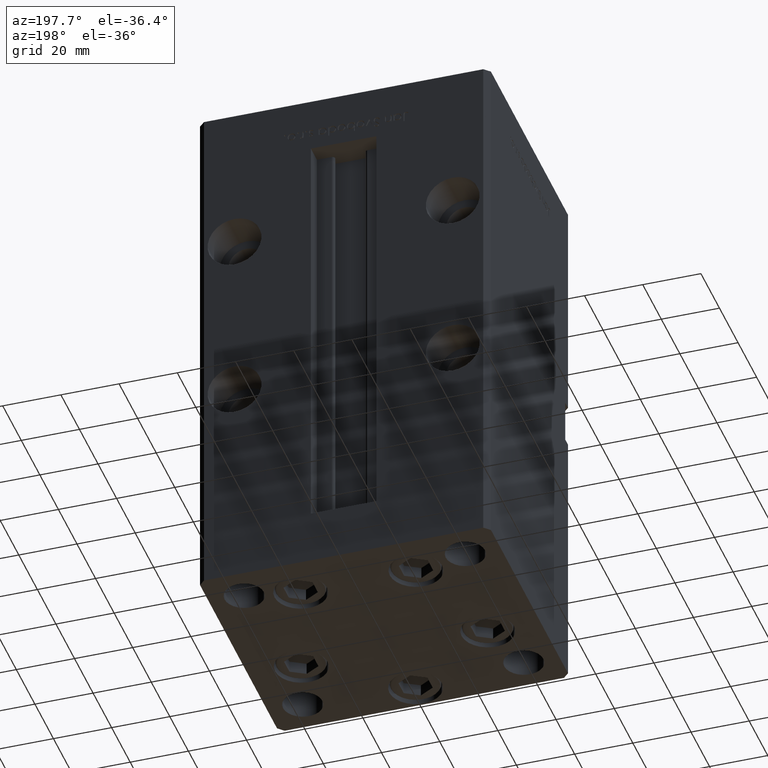
[diagram: clean part render]
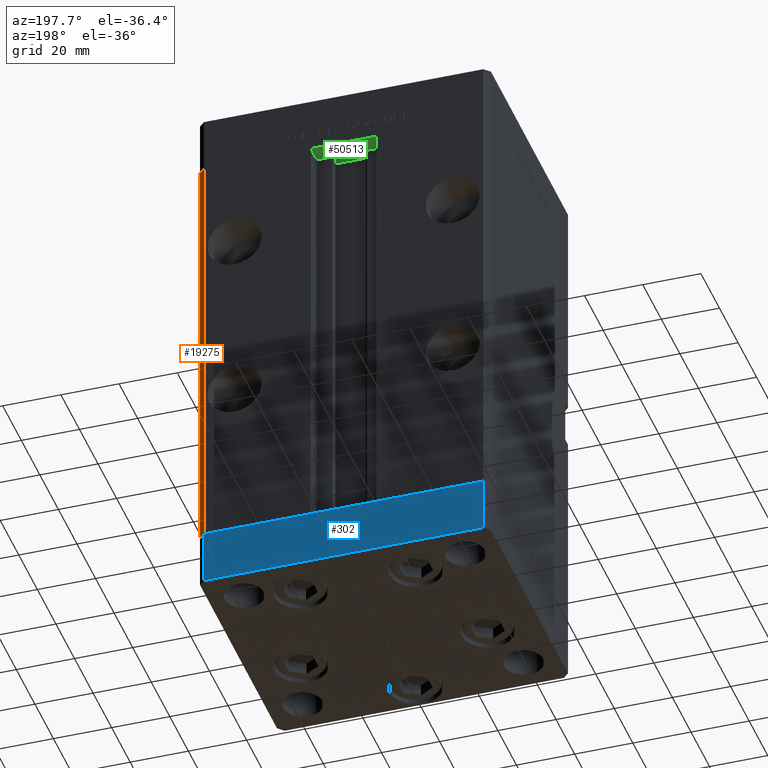
[diagram: same view with three faces highlighted in distinct colors, each labeled with its STEP entity id]
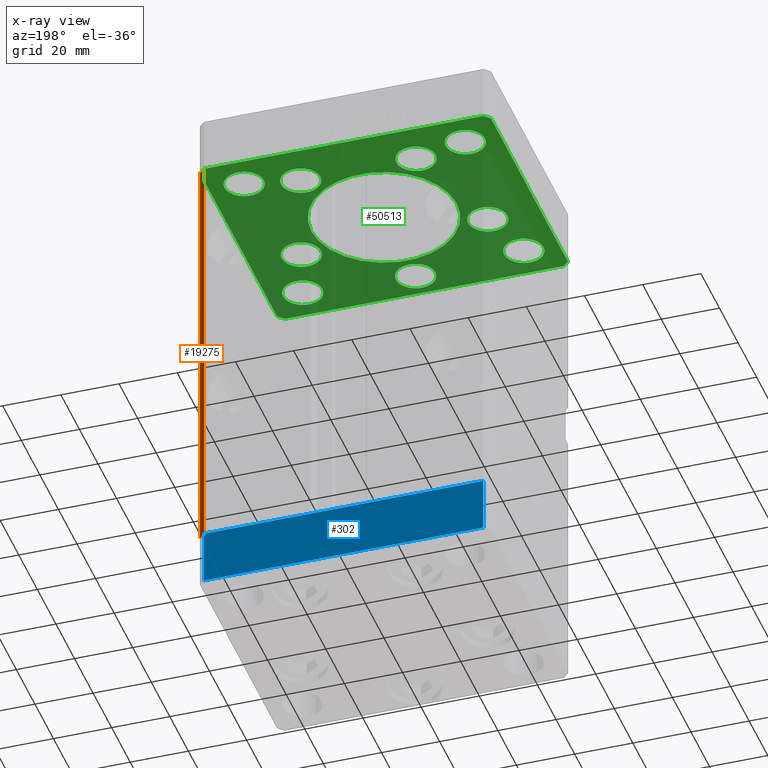
[diagram: x-ray of the same camera — body ghosted, the three highlighted faces saturated]
A machine part, auxiliary view with three faces highlighted in distinct colors.
The next image is the same camera in x-ray (body ghosted, the three faces saturated) — at least one of them is partly hidden behind the body in this view.
Their STEP definitions:

[orange] entity #19275 — the highlighted planar face has unit normal (0.7071, 0.7071, 0).
#2567 = EDGE_CURVE ( 'NONE', #20610, #41013, #51943, .T. ) ;
#3017 = DIRECTION ( 'NONE',  ( -0.000000000000000000, -0.000000000000000000, -1.000000000000000000 ) ) ;
#5166 = DIRECTION ( 'NONE',  ( 0.7071067811865487940, -0.7071067811865463515, 0.000000000000000000 ) ) ;
#5375 = CARTESIAN_POINT ( 'NONE',  ( 48.00000000000000711, 43.50000000000000000, 0.000000000000000000 ) ) ;
#6589 = EDGE_CURVE ( 'NONE', #41013, #16963, #34157, .T. ) ;
#7431 = ORIENTED_EDGE ( 'NONE', *, *, #2567, .F. ) ;
#11104 = VECTOR ( 'NONE', #5166, 1000.000000000000000 ) ;
#12851 = FACE_OUTER_BOUND ( 'NONE', #39712, .T. ) ;
#13911 = DIRECTION ( 'NONE',  ( 0.7071067811865463515, 0.7071067811865487940, -0.000000000000000000 ) ) ;
#16071 = CARTESIAN_POINT ( 'NONE',  ( 50.00000000000001421, 41.49999999999999289, 0.000000000000000000 ) ) ;
#16963 = VERTEX_POINT ( 'NONE', #16071 ) ;
#18594 = VERTEX_POINT ( 'NONE', #32690 ) ;
#19275 = ADVANCED_FACE ( 'NONE', ( #12851 ), #21212, .T. ) ;
#20610 = VERTEX_POINT ( 'NONE', #30955 ) ;
#21212 = PLANE ( 'NONE',  #46679 ) ;
#23267 = VECTOR ( 'NONE', #50532, 1000.000000000000000 ) ;
#27765 = CARTESIAN_POINT ( 'NONE',  ( 48.00000000000000711, 43.50000000000000000, 148.5000000000000000 ) ) ;
#30468 = CARTESIAN_POINT ( 'NONE',  ( 50.00000000000001421, 41.49999999999999289, 148.5000000000000000 ) ) ;
#30609 = CARTESIAN_POINT ( 'NONE',  ( 48.00000000000000711, 43.50000000000000000, 148.5000000000000000 ) ) ;
#30955 = CARTESIAN_POINT ( 'NONE',  ( 48.00000000000000711, 43.50000000000000000, 148.5000000000000000 ) ) ;
#32585 = VECTOR ( 'NONE', #3017, 1000.000000000000000 ) ;
#32690 = CARTESIAN_POINT ( 'NONE',  ( 50.00000000000001421, 41.49999999999999289, 148.5000000000000000 ) ) ;
#34157 = LINE ( 'NONE', #5375, #23267 ) ;
#36027 = EDGE_CURVE ( 'NONE', #20610, #18594, #38754, .T. ) ;
#36953 = EDGE_CURVE ( 'NONE', #18594, #16963, #44322, .T. ) ;
#38754 = LINE ( 'NONE', #42001, #11104 ) ;
#39038 = DIRECTION ( 'NONE',  ( -0.000000000000000000, -0.000000000000000000, -1.000000000000000000 ) ) ;
#39439 = DIRECTION ( 'NONE',  ( -0.7071067811865487940, 0.7071067811865463515, 0.000000000000000000 ) ) ;
#39712 = EDGE_LOOP ( 'NONE', ( #46822, #7431, #45962, #42011 ) ) ;
#41013 = VERTEX_POINT ( 'NONE', #48614 ) ;
#42001 = CARTESIAN_POINT ( 'NONE',  ( 48.00000000000000711, 43.50000000000000000, 148.5000000000000000 ) ) ;
#42011 = ORIENTED_EDGE ( 'NONE', *, *, #36953, .T. ) ;
#44322 = LINE ( 'NONE', #30468, #45475 ) ;
#45475 = VECTOR ( 'NONE', #39038, 1000.000000000000000 ) ;
#45962 = ORIENTED_EDGE ( 'NONE', *, *, #36027, .T. ) ;
#46679 = AXIS2_PLACEMENT_3D ( 'NONE', #30609, #13911, #39439 ) ;
#46822 = ORIENTED_EDGE ( 'NONE', *, *, #6589, .F. ) ;
#48614 = CARTESIAN_POINT ( 'NONE',  ( 48.00000000000000711, 43.50000000000000000, 0.000000000000000000 ) ) ;
#50532 = DIRECTION ( 'NONE',  ( 0.7071067811865487940, -0.7071067811865463515, 0.000000000000000000 ) ) ;
#51943 = LINE ( 'NONE', #27765, #32585 ) ;

[blue] entity #302 — the highlighted planar face has unit normal (-0, 1, 0).
#302 = ADVANCED_FACE ( 'NONE', ( #17180 ), #20966, .T. ) ;
#619 = CARTESIAN_POINT ( 'NONE',  ( 47.99999999999990763, 43.50000000000000000, -19.00000000000000000 ) ) ;
#693 = VERTEX_POINT ( 'NONE', #9841 ) ;
#2247 = VECTOR ( 'NONE', #7472, 1000.000000000000000 ) ;
#4806 = VERTEX_POINT ( 'NONE', #23884 ) ;
#7472 = DIRECTION ( 'NONE',  ( 0.000000000000000000, 0.000000000000000000, 1.000000000000000000 ) ) ;
#8490 = DIRECTION ( 'NONE',  ( -1.000000000000000000, -3.614007241618350743E-16, 0.000000000000000000 ) ) ;
#9841 = CARTESIAN_POINT ( 'NONE',  ( -48.00000000000000711, 43.49999999999996447, -19.00000000000000000 ) ) ;
#12361 = CARTESIAN_POINT ( 'NONE',  ( -48.00000000000000711, 43.49999999999996447, 0.000000000000000000 ) ) ;
#12608 = DIRECTION ( 'NONE',  ( -1.000000000000000000, -3.614007241618350743E-16, 0.000000000000000000 ) ) ;
#13762 = LINE ( 'NONE', #619, #48368 ) ;
#16827 = CARTESIAN_POINT ( 'NONE',  ( 47.99999999999990763, 43.50000000000000000, 0.000000000000000000 ) ) ;
#16920 = CARTESIAN_POINT ( 'NONE',  ( 47.99999999999990763, 43.50000000000000000, -19.00000000000000000 ) ) ;
#17180 = FACE_OUTER_BOUND ( 'NONE', #18619, .T. ) ;
#17780 = EDGE_CURVE ( 'NONE', #34168, #693, #13762, .T. ) ;
#18619 = EDGE_LOOP ( 'NONE', ( #51272, #35066, #49489, #18728 ) ) ;
#18728 = ORIENTED_EDGE ( 'NONE', *, *, #32778, .T. ) ;
#20966 = PLANE ( 'NONE',  #45502 ) ;
#22176 = VECTOR ( 'NONE', #27884, 1000.000000000000000 ) ;
#23309 = CARTESIAN_POINT ( 'NONE',  ( -48.00000000000000711, 43.49999999999996447, -19.00000000000000000 ) ) ;
#23884 = CARTESIAN_POINT ( 'NONE',  ( 47.99999999999990763, 43.50000000000000000, 0.000000000000000000 ) ) ;
#25173 = LINE ( 'NONE', #16827, #30782 ) ;
#25629 = DIRECTION ( 'NONE',  ( -1.000000000000000000, -3.614007241618350743E-16, 0.000000000000000000 ) ) ;
#26172 = EDGE_CURVE ( 'NONE', #34168, #4806, #51555, .T. ) ;
#27884 = DIRECTION ( 'NONE',  ( 0.000000000000000000, 0.000000000000000000, 1.000000000000000000 ) ) ;
#30782 = VECTOR ( 'NONE', #8490, 1000.000000000000000 ) ;
#31167 = CARTESIAN_POINT ( 'NONE',  ( 47.99999999999990763, 43.50000000000000000, -19.00000000000000000 ) ) ;
#32179 = LINE ( 'NONE', #23309, #22176 ) ;
#32778 = EDGE_CURVE ( 'NONE', #693, #49870, #32179, .T. ) ;
#32842 = EDGE_CURVE ( 'NONE', #4806, #49870, #25173, .T. ) ;
#34168 = VERTEX_POINT ( 'NONE', #45083 ) ;
#35066 = ORIENTED_EDGE ( 'NONE', *, *, #26172, .F. ) ;
#45083 = CARTESIAN_POINT ( 'NONE',  ( 47.99999999999990763, 43.50000000000000000, -19.00000000000000000 ) ) ;
#45502 = AXIS2_PLACEMENT_3D ( 'NONE', #16920, #52923, #12608 ) ;
#48368 = VECTOR ( 'NONE', #25629, 1000.000000000000000 ) ;
#49489 = ORIENTED_EDGE ( 'NONE', *, *, #17780, .T. ) ;
#49870 = VERTEX_POINT ( 'NONE', #12361 ) ;
#51272 = ORIENTED_EDGE ( 'NONE', *, *, #32842, .F. ) ;
#51555 = LINE ( 'NONE', #31167, #2247 ) ;
#52923 = DIRECTION ( 'NONE',  ( -3.614007241618350743E-16, 1.000000000000000000, 0.000000000000000000 ) ) ;

[green] entity #50513 — the highlighted planar face has unit normal (0, 0, 1).
#9 = CARTESIAN_POINT ( 'NONE',  ( 44.75000000000000711, -31.50000000000000711, -19.00000000000000000 ) ) ;
#276 = VERTEX_POINT ( 'NONE', #35492 ) ;
#337 = FACE_BOUND ( 'NONE', #22756, .T. ) ;
#645 = VERTEX_POINT ( 'NONE', #30295 ) ;
#1219 = ORIENTED_EDGE ( 'NONE', *, *, #7680, .T. ) ;
#1412 = CARTESIAN_POINT ( 'NONE',  ( 50.00000000000000000, 41.50000000000000711, -19.00000000000000000 ) ) ;
#1435 = CARTESIAN_POINT ( 'NONE',  ( 38.00000000000000000, 31.50000000000000000, -19.00000000000000000 ) ) ;
#2026 = AXIS2_PLACEMENT_3D ( 'NONE', #52338, #51286, #15518 ) ;
#2083 = DIRECTION ( 'NONE',  ( 1.000000000000000000, 0.000000000000000000, 0.000000000000000000 ) ) ;
#2460 = CARTESIAN_POINT ( 'NONE',  ( -26.57068048781375325, 27.62499999999998934, -19.00000000000000000 ) ) ;
#2581 = CARTESIAN_POINT ( 'NONE',  ( 0.000000000000000000, -34.00000000000000000, -19.00000000000000000 ) ) ;
#2671 = CARTESIAN_POINT ( 'NONE',  ( 38.80550741379015989, -11.33333333333332860, -19.00000000000000000 ) ) ;
#2763 = CIRCLE ( 'NONE', #27695, 6.749999999999999112 ) ;
#2844 = AXIS2_PLACEMENT_3D ( 'NONE', #30446, #38216, #5688 ) ;
#2958 = CARTESIAN_POINT ( 'NONE',  ( 0.000000000000000000, -34.00000000000000000, -19.00000000000000000 ) ) ;
#3185 = ORIENTED_EDGE ( 'NONE', *, *, #49909, .F. ) ;
#3190 = EDGE_CURVE ( 'NONE', #19876, #46682, #13733, .T. ) ;
#3293 = CARTESIAN_POINT ( 'NONE',  ( 50.00000000000000000, 41.50000000000000711, -19.00000000000000000 ) ) ;
#3545 = DIRECTION ( 'NONE',  ( 0.000000000000000000, -0.000000000000000000, -1.000000000000000000 ) ) ;
#3739 = DIRECTION ( 'NONE',  ( 0.000000000000000000, -0.000000000000000000, -1.000000000000000000 ) ) ;
#3753 = DIRECTION ( 'NONE',  ( 1.000000000000000000, 0.000000000000000000, 0.000000000000000000 ) ) ;
#3755 = DIRECTION ( 'NONE',  ( 0.000000000000000000, -0.000000000000000000, -1.000000000000000000 ) ) ;
#3808 = EDGE_LOOP ( 'NONE', ( #34101, #20000 ) ) ;
#4060 = ORIENTED_EDGE ( 'NONE', *, *, #15569, .F. ) ;
#4847 = ORIENTED_EDGE ( 'NONE', *, *, #19917, .F. ) ;
#5347 = CARTESIAN_POINT ( 'NONE',  ( 13.07068048781375147, 27.62499999999998934, -19.00000000000000000 ) ) ;
#5399 = CIRCLE ( 'NONE', #35460, 6.749999999999999112 ) ;
#5419 = FACE_BOUND ( 'NONE', #3808, .T. ) ;
#5688 = DIRECTION ( 'NONE',  ( 1.000000000000000000, 0.000000000000000000, 0.000000000000000000 ) ) ;
#5807 = CARTESIAN_POINT ( 'NONE',  ( -38.00000000000000000, 31.50000000000000000, -19.00000000000000000 ) ) ;
#5946 = FACE_BOUND ( 'NONE', #37921, .T. ) ;
#6738 = CIRCLE ( 'NONE', #11897, 6.749999999999999112 ) ;
#6759 = CARTESIAN_POINT ( 'NONE',  ( 32.05550741379015989, -11.33333333333332860, -19.00000000000000000 ) ) ;
#7021 = DIRECTION ( 'NONE',  ( 0.000000000000000000, -0.000000000000000000, -1.000000000000000000 ) ) ;
#7093 = LINE ( 'NONE', #31313, #28981 ) ;
#7136 = CARTESIAN_POINT ( 'NONE',  ( -48.00000000000000000, 43.49999999999997158, -19.00000000000000000 ) ) ;
#7335 = DIRECTION ( 'NONE',  ( 1.000000000000000000, 0.000000000000000000, 0.000000000000000000 ) ) ;
#7354 = CARTESIAN_POINT ( 'NONE',  ( -25.00000000000000000, 3.061616997868383043E-15, -19.00000000000000000 ) ) ;
#7680 = EDGE_CURVE ( 'NONE', #46682, #19876, #45627, .T. ) ;
#7743 = EDGE_CURVE ( 'NONE', #41165, #28846, #49061, .T. ) ;
#7769 = AXIS2_PLACEMENT_3D ( 'NONE', #2581, #35120, #14690 ) ;
#8017 = CARTESIAN_POINT ( 'NONE',  ( -31.25000000000000711, -31.50000000000000711, -19.00000000000000000 ) ) ;
#8488 = ORIENTED_EDGE ( 'NONE', *, *, #33697, .F. ) ;
#8690 = AXIS2_PLACEMENT_3D ( 'NONE', #25352, #13220, #16999 ) ;
#8976 = ORIENTED_EDGE ( 'NONE', *, *, #38957, .F. ) ;
#9336 = DIRECTION ( 'NONE',  ( 0.7071067811865474617, 0.7071067811865474617, 0.000000000000000000 ) ) ;
#9346 = ORIENTED_EDGE ( 'NONE', *, *, #7743, .T. ) ;
#9395 = EDGE_CURVE ( 'NONE', #50476, #23575, #48217, .T. ) ;
#9484 = EDGE_LOOP ( 'NONE', ( #1219, #32107 ) ) ;
#9507 = DIRECTION ( 'NONE',  ( 0.000000000000000000, 0.000000000000000000, 1.000000000000000000 ) ) ;
#9754 = CIRCLE ( 'NONE', #41500, 6.749999999999999112 ) ;
#9894 = EDGE_LOOP ( 'NONE', ( #15101, #45836 ) ) ;
#10031 = CARTESIAN_POINT ( 'NONE',  ( 31.25000000000000711, -31.50000000000000711, -19.00000000000000000 ) ) ;
#10286 = EDGE_LOOP ( 'NONE', ( #9346, #42416 ) ) ;
#10405 = CARTESIAN_POINT ( 'NONE',  ( -48.00000000000000711, -43.50000000000002842, -19.00000000000000000 ) ) ;
#10789 = EDGE_CURVE ( 'NONE', #40110, #14577, #49142, .T. ) ;
#10902 = DIRECTION ( 'NONE',  ( -0.7071067811865536790, -0.7071067811865414665, 0.000000000000000000 ) ) ;
#11342 = CARTESIAN_POINT ( 'NONE',  ( -50.00000000000000000, -41.50000000000004263, -19.00000000000000000 ) ) ;
#11618 = EDGE_CURVE ( 'NONE', #43804, #51718, #5399, .T. ) ;
#11777 = ORIENTED_EDGE ( 'NONE', *, *, #16631, .F. ) ;
#11897 = AXIS2_PLACEMENT_3D ( 'NONE', #5807, #38332, #33802 ) ;
#12170 = VECTOR ( 'NONE', #24782, 1000.000000000000000 ) ;
#13106 = LINE ( 'NONE', #50197, #30083 ) ;
#13220 = DIRECTION ( 'NONE',  ( 0.000000000000000000, -0.000000000000000000, -1.000000000000000000 ) ) ;
#13451 = ORIENTED_EDGE ( 'NONE', *, *, #9395, .F. ) ;
#13490 = FACE_BOUND ( 'NONE', #20736, .T. ) ;
#13733 = CIRCLE ( 'NONE', #30069, 6.749999999999999112 ) ;
#13834 = EDGE_CURVE ( 'NONE', #51718, #43804, #19232, .T. ) ;
#13846 = CARTESIAN_POINT ( 'NONE',  ( -31.25000000000000000, 31.50000000000000000, -19.00000000000000000 ) ) ;
#14011 = DIRECTION ( 'NONE',  ( 0.000000000000000000, -0.000000000000000000, -1.000000000000000000 ) ) ;
#14233 = EDGE_CURVE ( 'NONE', #28846, #41165, #52671, .T. ) ;
#14286 = FACE_OUTER_BOUND ( 'NONE', #39121, .T. ) ;
#14577 = VERTEX_POINT ( 'NONE', #45463 ) ;
#14652 = ORIENTED_EDGE ( 'NONE', *, *, #33793, .F. ) ;
#14690 = DIRECTION ( 'NONE',  ( 1.000000000000000000, 0.000000000000000000, 0.000000000000000000 ) ) ;
#14968 = EDGE_CURVE ( 'NONE', #21797, #19869, #43285, .T. ) ;
#15094 = DIRECTION ( 'NONE',  ( 1.000000000000000000, 0.000000000000000000, 0.000000000000000000 ) ) ;
#15101 = ORIENTED_EDGE ( 'NONE', *, *, #48548, .F. ) ;
#15518 = DIRECTION ( 'NONE',  ( 1.000000000000000000, 0.000000000000000000, 0.000000000000000000 ) ) ;
#15569 = EDGE_CURVE ( 'NONE', #49505, #22609, #48248, .T. ) ;
#15764 = AXIS2_PLACEMENT_3D ( 'NONE', #19369, #19626, #35491 ) ;
#16419 = ORIENTED_EDGE ( 'NONE', *, *, #10789, .F. ) ;
#16460 = CARTESIAN_POINT ( 'NONE',  ( -44.75000000000000000, 31.50000000000000000, -19.00000000000000000 ) ) ;
#16631 = EDGE_CURVE ( 'NONE', #37746, #32265, #48457, .T. ) ;
#16999 = DIRECTION ( 'NONE',  ( 1.000000000000000000, 0.000000000000000000, 0.000000000000000000 ) ) ;
#17537 = AXIS2_PLACEMENT_3D ( 'NONE', #2958, #3739, #43556 ) ;
#17979 = ORIENTED_EDGE ( 'NONE', *, *, #49834, .F. ) ;
#18194 = CIRCLE ( 'NONE', #28551, 6.749999999999999112 ) ;
#18389 = CARTESIAN_POINT ( 'NONE',  ( -44.75000000000000711, -31.50000000000000711, -19.00000000000000000 ) ) ;
#18688 = VERTEX_POINT ( 'NONE', #50928 ) ;
#18734 = VERTEX_POINT ( 'NONE', #32112 ) ;
#19232 = CIRCLE ( 'NONE', #15764, 6.749999999999999112 ) ;
#19369 = CARTESIAN_POINT ( 'NONE',  ( 38.00000000000000711, -31.50000000000000711, -19.00000000000000000 ) ) ;
#19626 = DIRECTION ( 'NONE',  ( -0.000000000000000000, -0.000000000000000000, -1.000000000000000000 ) ) ;
#19680 = DIRECTION ( 'NONE',  ( 0.000000000000000000, 1.000000000000000000, 0.000000000000000000 ) ) ;
#19869 = VERTEX_POINT ( 'NONE', #51392 ) ;
#19876 = VERTEX_POINT ( 'NONE', #39314 ) ;
#19917 = EDGE_CURVE ( 'NONE', #27137, #39308, #30447, .T. ) ;
#19973 = CARTESIAN_POINT ( 'NONE',  ( -6.749999999999999112, -34.00000000000000000, -19.00000000000000000 ) ) ;
#20000 = ORIENTED_EDGE ( 'NONE', *, *, #11618, .F. ) ;
#20418 = ORIENTED_EDGE ( 'NONE', *, *, #51633, .F. ) ;
#20502 = FACE_BOUND ( 'NONE', #33021, .T. ) ;
#20622 = DIRECTION ( 'NONE',  ( 1.000000000000000000, 0.000000000000000000, 0.000000000000000000 ) ) ;
#20736 = EDGE_LOOP ( 'NONE', ( #14652, #13451 ) ) ;
#21124 = CARTESIAN_POINT ( 'NONE',  ( -19.82068048781374969, 27.62499999999998934, -19.00000000000000000 ) ) ;
#21797 = VERTEX_POINT ( 'NONE', #19973 ) ;
#22267 = CARTESIAN_POINT ( 'NONE',  ( -38.00000000000000711, -31.50000000000000711, -19.00000000000000000 ) ) ;
#22303 = DIRECTION ( 'NONE',  ( 1.000000000000000000, 0.000000000000000000, 0.000000000000000000 ) ) ;
#22438 = DIRECTION ( 'NONE',  ( 1.000000000000000000, 0.000000000000000000, 0.000000000000000000 ) ) ;
#22609 = VERTEX_POINT ( 'NONE', #23486 ) ;
#22627 = ORIENTED_EDGE ( 'NONE', *, *, #14968, .F. ) ;
#22756 = EDGE_LOOP ( 'NONE', ( #4847, #39908 ) ) ;
#23008 = VERTEX_POINT ( 'NONE', #2671 ) ;
#23383 = AXIS2_PLACEMENT_3D ( 'NONE', #39924, #35885, #52270 ) ;
#23486 = CARTESIAN_POINT ( 'NONE',  ( -50.00000000000000711, 41.49999999999999289, -19.00000000000000000 ) ) ;
#23560 = DIRECTION ( 'NONE',  ( -1.000000000000000000, 0.000000000000000000, 0.000000000000000000 ) ) ;
#23575 = VERTEX_POINT ( 'NONE', #13846 ) ;
#24032 = EDGE_LOOP ( 'NONE', ( #3185, #37392 ) ) ;
#24199 = AXIS2_PLACEMENT_3D ( 'NONE', #25017, #3755, #41406 ) ;
#24446 = VECTOR ( 'NONE', #32089, 999.9999999999998863 ) ;
#24782 = DIRECTION ( 'NONE',  ( 0.7071067811865487940, -0.7071067811865463515, 0.000000000000000000 ) ) ;
#25017 = CARTESIAN_POINT ( 'NONE',  ( -19.82068048781374969, 27.62499999999998934, -19.00000000000000000 ) ) ;
#25026 = EDGE_CURVE ( 'NONE', #34212, #645, #45992, .T. ) ;
#25352 = CARTESIAN_POINT ( 'NONE',  ( 0.000000000000000000, 0.000000000000000000, -19.00000000000000000 ) ) ;
#25522 = ORIENTED_EDGE ( 'NONE', *, *, #43217, .F. ) ;
#25774 = DIRECTION ( 'NONE',  ( 0.000000000000000000, 0.000000000000000000, 1.000000000000000000 ) ) ;
#25922 = DIRECTION ( 'NONE',  ( 1.000000000000000000, 0.000000000000000000, 0.000000000000000000 ) ) ;
#26020 = EDGE_CURVE ( 'NONE', #14577, #40110, #41753, .T. ) ;
#26175 = AXIS2_PLACEMENT_3D ( 'NONE', #39836, #35807, #39569 ) ;
#26936 = PLANE ( 'NONE',  #2844 ) ;
#27137 = VERTEX_POINT ( 'NONE', #52822 ) ;
#27232 = EDGE_LOOP ( 'NONE', ( #34668, #16419 ) ) ;
#27264 = DIRECTION ( 'NONE',  ( 0.000000000000000000, -0.000000000000000000, -1.000000000000000000 ) ) ;
#27592 = DIRECTION ( 'NONE',  ( -0.000000000000000000, -0.000000000000000000, -1.000000000000000000 ) ) ;
#27626 = ORIENTED_EDGE ( 'NONE', *, *, #38871, .F. ) ;
#27695 = AXIS2_PLACEMENT_3D ( 'NONE', #32284, #52940, #3753 ) ;
#28551 = AXIS2_PLACEMENT_3D ( 'NONE', #21124, #27264, #22438 ) ;
#28589 = FACE_BOUND ( 'NONE', #27232, .T. ) ;
#28846 = VERTEX_POINT ( 'NONE', #18389 ) ;
#28981 = VECTOR ( 'NONE', #39887, 1000.000000000000000 ) ;
#29997 = EDGE_CURVE ( 'NONE', #22609, #18734, #7093, .T. ) ;
#30069 = AXIS2_PLACEMENT_3D ( 'NONE', #1435, #9507, #25922 ) ;
#30083 = VECTOR ( 'NONE', #9336, 1000.000000000000114 ) ;
#30270 = AXIS2_PLACEMENT_3D ( 'NONE', #45412, #46461, #22303 ) ;
#30295 = CARTESIAN_POINT ( 'NONE',  ( 26.57068048781374969, 27.62499999999998934, -19.00000000000000000 ) ) ;
#30446 = CARTESIAN_POINT ( 'NONE',  ( 0.000000000000000000, 0.000000000000000000, -19.00000000000000000 ) ) ;
#30447 = CIRCLE ( 'NONE', #26175, 25.00000000000000000 ) ;
#30600 = LINE ( 'NONE', #10405, #51351 ) ;
#30671 = CARTESIAN_POINT ( 'NONE',  ( 48.00000000000000711, -43.49999999999992184, -19.00000000000000000 ) ) ;
#31046 = CARTESIAN_POINT ( 'NONE',  ( 47.99999999999999289, 43.50000000000000000, -19.00000000000000000 ) ) ;
#31160 = CARTESIAN_POINT ( 'NONE',  ( 47.99999999999999289, 43.50000000000000000, -19.00000000000000000 ) ) ;
#31313 = CARTESIAN_POINT ( 'NONE',  ( -50.00000000000000711, 41.49999999999999289, -19.00000000000000000 ) ) ;
#31883 = CIRCLE ( 'NONE', #8690, 25.00000000000000000 ) ;
#31912 = AXIS2_PLACEMENT_3D ( 'NONE', #43213, #46174, #2083 ) ;
#32058 = CARTESIAN_POINT ( 'NONE',  ( 50.00000000000000000, -41.49999999999992895, -19.00000000000000000 ) ) ;
#32089 = DIRECTION ( 'NONE',  ( -0.7071067811865512365, 0.7071067811865439090, 0.000000000000000000 ) ) ;
#32107 = ORIENTED_EDGE ( 'NONE', *, *, #3190, .T. ) ;
#32112 = CARTESIAN_POINT ( 'NONE',  ( -50.00000000000000000, -41.50000000000004263, -19.00000000000000000 ) ) ;
#32265 = VERTEX_POINT ( 'NONE', #31046 ) ;
#32284 = CARTESIAN_POINT ( 'NONE',  ( 32.05550741379015989, -11.33333333333332860, -19.00000000000000000 ) ) ;
#32708 = EDGE_CURVE ( 'NONE', #51205, #41651, #30600, .T. ) ;
#32776 = ORIENTED_EDGE ( 'NONE', *, *, #43154, .F. ) ;
#32834 = CIRCLE ( 'NONE', #30270, 6.749999999999999112 ) ;
#33021 = EDGE_LOOP ( 'NONE', ( #8976, #22627 ) ) ;
#33676 = DIRECTION ( 'NONE',  ( 1.000000000000000000, 0.000000000000000000, 0.000000000000000000 ) ) ;
#33697 = EDGE_CURVE ( 'NONE', #32265, #49505, #39205, .T. ) ;
#33793 = EDGE_CURVE ( 'NONE', #23575, #50476, #6738, .T. ) ;
#33802 = DIRECTION ( 'NONE',  ( -1.000000000000000000, 0.000000000000000000, 0.000000000000000000 ) ) ;
#33857 = ORIENTED_EDGE ( 'NONE', *, *, #32708, .F. ) ;
#33869 = CARTESIAN_POINT ( 'NONE',  ( -32.05550741379015989, -11.33333333333332860, -19.00000000000000000 ) ) ;
#34101 = ORIENTED_EDGE ( 'NONE', *, *, #13834, .F. ) ;
#34212 = VERTEX_POINT ( 'NONE', #5347 ) ;
#34271 = CARTESIAN_POINT ( 'NONE',  ( -38.80550741379015989, -11.33333333333332860, -19.00000000000000000 ) ) ;
#34668 = ORIENTED_EDGE ( 'NONE', *, *, #26020, .F. ) ;
#35120 = DIRECTION ( 'NONE',  ( 0.000000000000000000, -0.000000000000000000, -1.000000000000000000 ) ) ;
#35425 = AXIS2_PLACEMENT_3D ( 'NONE', #38466, #14011, #33676 ) ;
#35460 = AXIS2_PLACEMENT_3D ( 'NONE', #52291, #27592, #23560 ) ;
#35491 = DIRECTION ( 'NONE',  ( -1.000000000000000000, 0.000000000000000000, 0.000000000000000000 ) ) ;
#35492 = CARTESIAN_POINT ( 'NONE',  ( 50.00000000000000000, -41.49999999999992895, -19.00000000000000000 ) ) ;
#35807 = DIRECTION ( 'NONE',  ( 0.000000000000000000, -0.000000000000000000, -1.000000000000000000 ) ) ;
#35885 = DIRECTION ( 'NONE',  ( -0.000000000000000000, -0.000000000000000000, -1.000000000000000000 ) ) ;
#36585 = AXIS2_PLACEMENT_3D ( 'NONE', #45060, #49093, #20622 ) ;
#37294 = VECTOR ( 'NONE', #10902, 1000.000000000000000 ) ;
#37392 = ORIENTED_EDGE ( 'NONE', *, *, #25026, .F. ) ;
#37746 = VERTEX_POINT ( 'NONE', #1412 ) ;
#37921 = EDGE_LOOP ( 'NONE', ( #20418, #17979 ) ) ;
#38216 = DIRECTION ( 'NONE',  ( -0.000000000000000000, 0.000000000000000000, 1.000000000000000000 ) ) ;
#38332 = DIRECTION ( 'NONE',  ( -0.000000000000000000, -0.000000000000000000, -1.000000000000000000 ) ) ;
#38466 = CARTESIAN_POINT ( 'NONE',  ( -32.05550741379015989, -11.33333333333332860, -19.00000000000000000 ) ) ;
#38752 = AXIS2_PLACEMENT_3D ( 'NONE', #22267, #25774, #50223 ) ;
#38871 = EDGE_CURVE ( 'NONE', #41651, #276, #13106, .T. ) ;
#38957 = EDGE_CURVE ( 'NONE', #19869, #21797, #49819, .T. ) ;
#39121 = EDGE_LOOP ( 'NONE', ( #25522, #45316, #4060, #8488, #11777, #32776, #27626, #33857 ) ) ;
#39205 = LINE ( 'NONE', #31160, #49668 ) ;
#39288 = FACE_BOUND ( 'NONE', #24032, .T. ) ;
#39308 = VERTEX_POINT ( 'NONE', #7354 ) ;
#39314 = CARTESIAN_POINT ( 'NONE',  ( 31.25000000000000000, 31.50000000000000000, -19.00000000000000000 ) ) ;
#39429 = DIRECTION ( 'NONE',  ( 1.000000000000000000, 1.156482317317871331E-15, 0.000000000000000000 ) ) ;
#39569 = DIRECTION ( 'NONE',  ( 1.000000000000000000, 0.000000000000000000, 0.000000000000000000 ) ) ;
#39836 = CARTESIAN_POINT ( 'NONE',  ( 0.000000000000000000, 0.000000000000000000, -19.00000000000000000 ) ) ;
#39887 = DIRECTION ( 'NONE',  ( 8.360113137237620037E-17, -1.000000000000000000, 0.000000000000000000 ) ) ;
#39908 = ORIENTED_EDGE ( 'NONE', *, *, #45907, .F. ) ;
#39924 = CARTESIAN_POINT ( 'NONE',  ( -38.00000000000000000, 31.50000000000000000, -19.00000000000000000 ) ) ;
#40110 = VERTEX_POINT ( 'NONE', #34271 ) ;
#40249 = DIRECTION ( 'NONE',  ( -1.000000000000000000, -2.891205793294678326E-16, 0.000000000000000000 ) ) ;
#40364 = LINE ( 'NONE', #32058, #51651 ) ;
#40585 = VERTEX_POINT ( 'NONE', #2460 ) ;
#40996 = CARTESIAN_POINT ( 'NONE',  ( 44.75000000000000000, 31.50000000000000000, -19.00000000000000000 ) ) ;
#41165 = VERTEX_POINT ( 'NONE', #8017 ) ;
#41406 = DIRECTION ( 'NONE',  ( 1.000000000000000000, 0.000000000000000000, 0.000000000000000000 ) ) ;
#41500 = AXIS2_PLACEMENT_3D ( 'NONE', #6759, #7021, #15094 ) ;
#41651 = VERTEX_POINT ( 'NONE', #30671 ) ;
#41753 = CIRCLE ( 'NONE', #48605, 6.749999999999999112 ) ;
#42123 = CARTESIAN_POINT ( 'NONE',  ( -13.07068048781375325, 27.62499999999998934, -19.00000000000000000 ) ) ;
#42252 = FACE_BOUND ( 'NONE', #9484, .T. ) ;
#42416 = ORIENTED_EDGE ( 'NONE', *, *, #14233, .T. ) ;
#43154 = EDGE_CURVE ( 'NONE', #276, #37746, #40364, .T. ) ;
#43213 = CARTESIAN_POINT ( 'NONE',  ( 38.00000000000000000, 31.50000000000000000, -19.00000000000000000 ) ) ;
#43217 = EDGE_CURVE ( 'NONE', #18734, #51205, #44133, .T. ) ;
#43285 = CIRCLE ( 'NONE', #17537, 6.749999999999999112 ) ;
#43556 = DIRECTION ( 'NONE',  ( 1.000000000000000000, 0.000000000000000000, 0.000000000000000000 ) ) ;
#43804 = VERTEX_POINT ( 'NONE', #10031 ) ;
#43905 = CIRCLE ( 'NONE', #24199, 6.749999999999999112 ) ;
#44133 = LINE ( 'NONE', #11342, #12170 ) ;
#45060 = CARTESIAN_POINT ( 'NONE',  ( 19.82068048781374969, 27.62499999999998934, -19.00000000000000000 ) ) ;
#45316 = ORIENTED_EDGE ( 'NONE', *, *, #29997, .F. ) ;
#45412 = CARTESIAN_POINT ( 'NONE',  ( 19.82068048781374969, 27.62499999999998934, -19.00000000000000000 ) ) ;
#45463 = CARTESIAN_POINT ( 'NONE',  ( -25.30550741379015989, -11.33333333333332860, -19.00000000000000000 ) ) ;
#45627 = CIRCLE ( 'NONE', #31912, 6.749999999999999112 ) ;
#45836 = ORIENTED_EDGE ( 'NONE', *, *, #47724, .F. ) ;
#45907 = EDGE_CURVE ( 'NONE', #39308, #27137, #31883, .T. ) ;
#45992 = CIRCLE ( 'NONE', #36585, 6.749999999999999112 ) ;
#46174 = DIRECTION ( 'NONE',  ( 0.000000000000000000, 0.000000000000000000, 1.000000000000000000 ) ) ;
#46432 = VERTEX_POINT ( 'NONE', #42123 ) ;
#46461 = DIRECTION ( 'NONE',  ( 0.000000000000000000, -0.000000000000000000, -1.000000000000000000 ) ) ;
#46682 = VERTEX_POINT ( 'NONE', #40996 ) ;
#47724 = EDGE_CURVE ( 'NONE', #40585, #46432, #43905, .T. ) ;
#48217 = CIRCLE ( 'NONE', #23383, 6.749999999999999112 ) ;
#48248 = LINE ( 'NONE', #7136, #37294 ) ;
#48457 = LINE ( 'NONE', #3293, #24446 ) ;
#48548 = EDGE_CURVE ( 'NONE', #46432, #40585, #18194, .T. ) ;
#48605 = AXIS2_PLACEMENT_3D ( 'NONE', #33869, #3545, #7335 ) ;
#48707 = CARTESIAN_POINT ( 'NONE',  ( -48.00000000000000000, 43.49999999999997158, -19.00000000000000000 ) ) ;
#49061 = CIRCLE ( 'NONE', #38752, 6.749999999999999112 ) ;
#49093 = DIRECTION ( 'NONE',  ( 0.000000000000000000, -0.000000000000000000, -1.000000000000000000 ) ) ;
#49142 = CIRCLE ( 'NONE', #35425, 6.749999999999999112 ) ;
#49396 = CARTESIAN_POINT ( 'NONE',  ( -48.00000000000000711, -43.50000000000002842, -19.00000000000000000 ) ) ;
#49505 = VERTEX_POINT ( 'NONE', #48707 ) ;
#49668 = VECTOR ( 'NONE', #40249, 1000.000000000000000 ) ;
#49819 = CIRCLE ( 'NONE', #7769, 6.749999999999999112 ) ;
#49834 = EDGE_CURVE ( 'NONE', #18688, #23008, #2763, .T. ) ;
#49909 = EDGE_CURVE ( 'NONE', #645, #34212, #32834, .T. ) ;
#50197 = CARTESIAN_POINT ( 'NONE',  ( 48.00000000000000711, -43.49999999999992184, -19.00000000000000000 ) ) ;
#50223 = DIRECTION ( 'NONE',  ( 1.000000000000000000, 0.000000000000000000, 0.000000000000000000 ) ) ;
#50317 = FACE_BOUND ( 'NONE', #10286, .T. ) ;
#50476 = VERTEX_POINT ( 'NONE', #16460 ) ;
#50513 = ADVANCED_FACE ( 'NONE', ( #337, #28589, #20502, #5946, #39288, #51112, #42252, #50317, #14286, #13490, #5419 ), #26936, .F. ) ;
#50928 = CARTESIAN_POINT ( 'NONE',  ( 25.30550741379015989, -11.33333333333332860, -19.00000000000000000 ) ) ;
#51112 = FACE_BOUND ( 'NONE', #9894, .T. ) ;
#51205 = VERTEX_POINT ( 'NONE', #49396 ) ;
#51286 = DIRECTION ( 'NONE',  ( 0.000000000000000000, 0.000000000000000000, 1.000000000000000000 ) ) ;
#51351 = VECTOR ( 'NONE', #39429, 1000.000000000000000 ) ;
#51392 = CARTESIAN_POINT ( 'NONE',  ( 6.749999999999999112, -34.00000000000000000, -19.00000000000000000 ) ) ;
#51633 = EDGE_CURVE ( 'NONE', #23008, #18688, #9754, .T. ) ;
#51651 = VECTOR ( 'NONE', #19680, 1000.000000000000000 ) ;
#51718 = VERTEX_POINT ( 'NONE', #9 ) ;
#52270 = DIRECTION ( 'NONE',  ( -1.000000000000000000, 0.000000000000000000, 0.000000000000000000 ) ) ;
#52291 = CARTESIAN_POINT ( 'NONE',  ( 38.00000000000000711, -31.50000000000000711, -19.00000000000000000 ) ) ;
#52338 = CARTESIAN_POINT ( 'NONE',  ( -38.00000000000000711, -31.50000000000000711, -19.00000000000000000 ) ) ;
#52671 = CIRCLE ( 'NONE', #2026, 6.749999999999999112 ) ;
#52822 = CARTESIAN_POINT ( 'NONE',  ( 25.00000000000000000, 0.000000000000000000, -19.00000000000000000 ) ) ;
#52940 = DIRECTION ( 'NONE',  ( 0.000000000000000000, -0.000000000000000000, -1.000000000000000000 ) ) ;